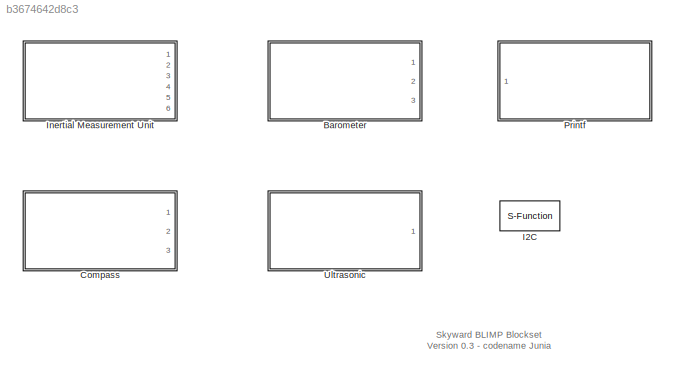
MODEL slx_b3674642d8c3
KIND library
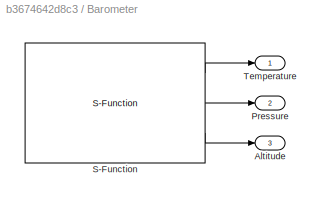
BLOCK [SubSystem] Barometer
  Ports = [0, 3]
  RequestExecContextInheritance = off
BLOCK [Outport] Barometer/Altitude
  IconDisplay = Port number
  Port = 3
BLOCK [Outport] Barometer/Pressure
  IconDisplay = Port number
  Port = 2
BLOCK [S-Function] Barometer/S-Function
  EnableBusSupport = off
  FunctionName = BMP_085
  Ports = [0, 3]
  SFunctionModules = 'BMP_085_wrapper'
BLOCK [Outport] Barometer/Temperature
  IconDisplay = Port number
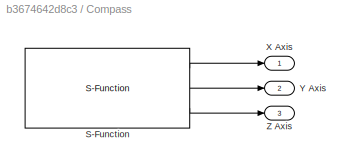
BLOCK [SubSystem] Compass
  Ports = [0, 3]
  RequestExecContextInheritance = off
BLOCK [S-Function] Compass/S-Function
  EnableBusSupport = off
  FunctionName = HMC5883L
  Ports = [0, 3]
  SFunctionModules = 'HMC5883L_wrapper'
BLOCK [Outport] Compass/X Axis
  IconDisplay = Port number
BLOCK [Outport] Compass/Y Axis
  IconDisplay = Port number
  Port = 2
BLOCK [Outport] Compass/Z Axis
  IconDisplay = Port number
  Port = 3
BLOCK [S-Function] I2C
  EnableBusSupport = off
  FunctionName = I2C
  Ports = []
  SFunctionModules = 'I2C_wrapper'
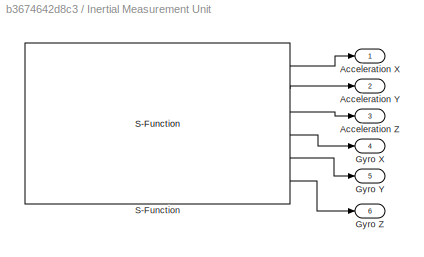
BLOCK [SubSystem] Inertial Measurement Unit
  Ports = [0, 6]
  RequestExecContextInheritance = off
BLOCK [Outport] Inertial Measurement Unit/Acceleration X
  IconDisplay = Port number
BLOCK [Outport] Inertial Measurement Unit/Acceleration Y
  IconDisplay = Port number
  Port = 2
BLOCK [Outport] Inertial Measurement Unit/Acceleration Z
  IconDisplay = Port number
  Port = 3
BLOCK [Outport] Inertial Measurement Unit/Gyro X
  IconDisplay = Port number
  Port = 4
BLOCK [Outport] Inertial Measurement Unit/Gyro Y
  IconDisplay = Port number
  Port = 5
BLOCK [Outport] Inertial Measurement Unit/Gyro Z
  IconDisplay = Port number
  Port = 6
BLOCK [S-Function] Inertial Measurement Unit/S-Function
  EnableBusSupport = off
  FunctionName = MPU6050
  Ports = [0, 6]
  SFunctionModules = 'MPU6050_wrapper'
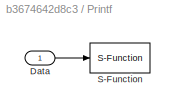
BLOCK [SubSystem] Printf
  Ports = [1]
  RequestExecContextInheritance = off
BLOCK [Inport] Printf/Data
  IconDisplay = Port number
BLOCK [S-Function] Printf/S-Function
  EnableBusSupport = off
  FunctionName = printf
  Ports = [1]
  SFunctionModules = 'printf_wrapper'
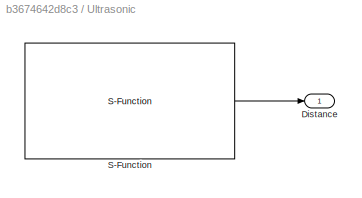
BLOCK [SubSystem] Ultrasonic
  Ports = [0, 1]
  RequestExecContextInheritance = off
BLOCK [Outport] Ultrasonic/Distance
  IconDisplay = Port number
BLOCK [S-Function] Ultrasonic/S-Function
  EnableBusSupport = off
  FunctionName = HC_SR04
  Ports = [0, 1]
  SFunctionModules = 'HC_SR04_wrapper'
ANNOTATION (root): Skyward BLIMP Blockset Version 0.3 - codename Junia
LINE Barometer/S-Function:1 -> Barometer/Temperature:1
LINE Barometer/S-Function:2 -> Barometer/Pressure:1
LINE Barometer/S-Function:3 -> Barometer/Altitude:1
LINE Compass/S-Function:1 -> Compass/X Axis:1
LINE Compass/S-Function:2 -> Compass/Y Axis:1
LINE Compass/S-Function:3 -> Compass/Z Axis:1
LINE Inertial Measurement Unit/S-Function:1 -> Inertial Measurement Unit/Acceleration X:1
LINE Inertial Measurement Unit/S-Function:2 -> Inertial Measurement Unit/Acceleration Y:1
LINE Inertial Measurement Unit/S-Function:3 -> Inertial Measurement Unit/Acceleration Z:1
LINE Inertial Measurement Unit/S-Function:4 -> Inertial Measurement Unit/Gyro X:1
LINE Inertial Measurement Unit/S-Function:5 -> Inertial Measurement Unit/Gyro Y:1
LINE Inertial Measurement Unit/S-Function:6 -> Inertial Measurement Unit/Gyro Z:1
LINE Printf/Data:1 -> Printf/S-Function:1
LINE Ultrasonic/S-Function:1 -> Ultrasonic/Distance:1
